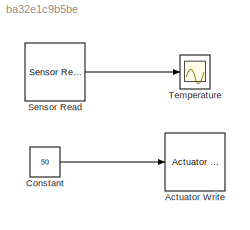
MODEL slx_ba32e1c9b5be
KIND model
CONFIG AbsTol = auto
CONFIG EnableMultiTasking = on
CONFIG FixedStep = 2
CONFIG MaxStep = auto
CONFIG MinStep = auto
CONFIG RelTol = 1e-3
CONFIG SampleTimeConstraint = Unconstrained
CONFIG Solver = FixedStepDiscrete
CONFIG SolverName = FixedStepDiscrete
CONFIG StartTime = 0.0
CONFIG StopTime = inf
BLOCK [Reference] Actuator Write  REF=HeatLibrary/Actuator Write
  Ports = [1]
  SourceBlock = HeatLibrary/Actuator Write
  SourceProductName = AutomationShield
BLOCK [Constant] Constant
  Value = 50
BLOCK [Reference] Sensor Read  REF=HeatLibrary/Sensor Read
  Ports = [0, 1]
  SourceBlock = HeatLibrary/Sensor Read
  SourceProductName = AutomationShield
BLOCK [Scope] Temperature 
  Floating = off
  NumInputPorts = 1
  Ports = [1]
  ScopeSpecificationString = Simulink.scopes.TimeScopeBlockCfg('CurrentConfiguration', extmgr.ConfigurationSet(extmgr.Configuration('Core','General UI',true),extmgr.Configuration('Core','Source UI',true),extmgr.Configuration('Sources','WiredSimulink',true),extmgr.Configuration('Visuals','Time Domain',true,'SerializedDisplays',{struct('MinYLimReal','26.22371','MaxYLimReal','28.12362','YLabelReal','','MinYLimMag','26.22371','Ma...<+1436ch>
LINE Constant:1 -> Actuator Write:1
LINE Sensor Read:1 -> Temperature :1
